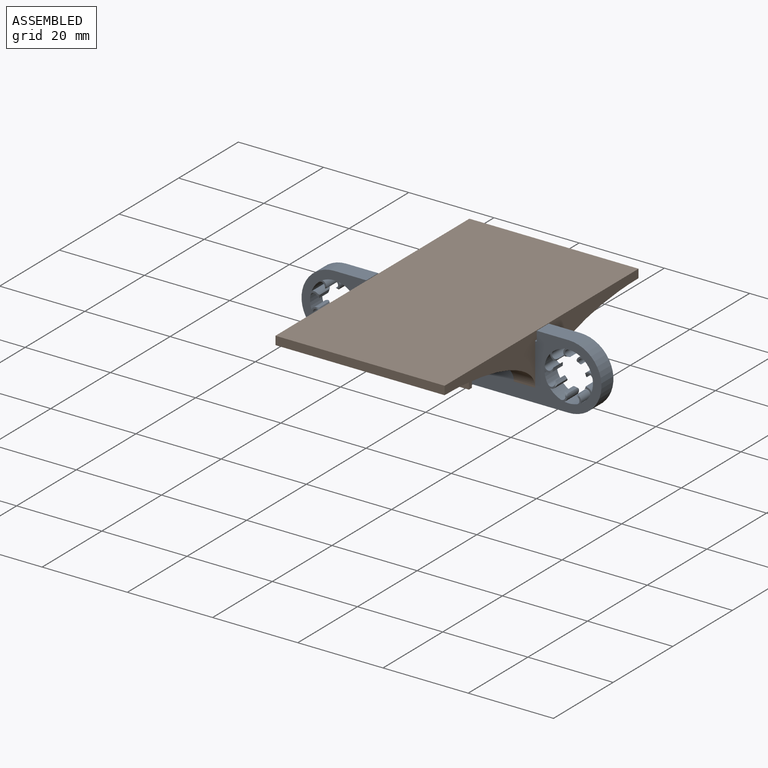
[diagram: assembled view]
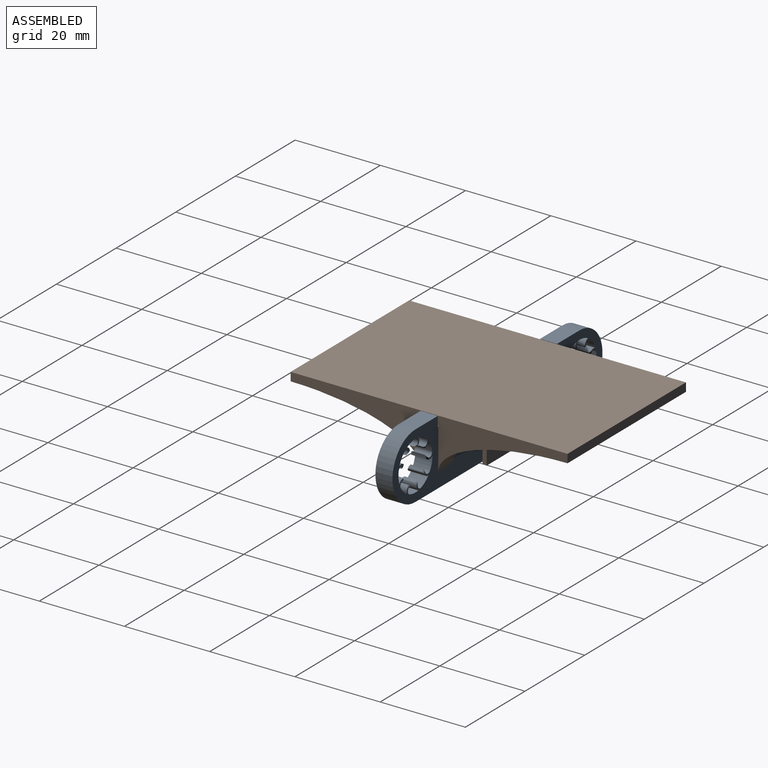
[diagram: assembled view, second angle]
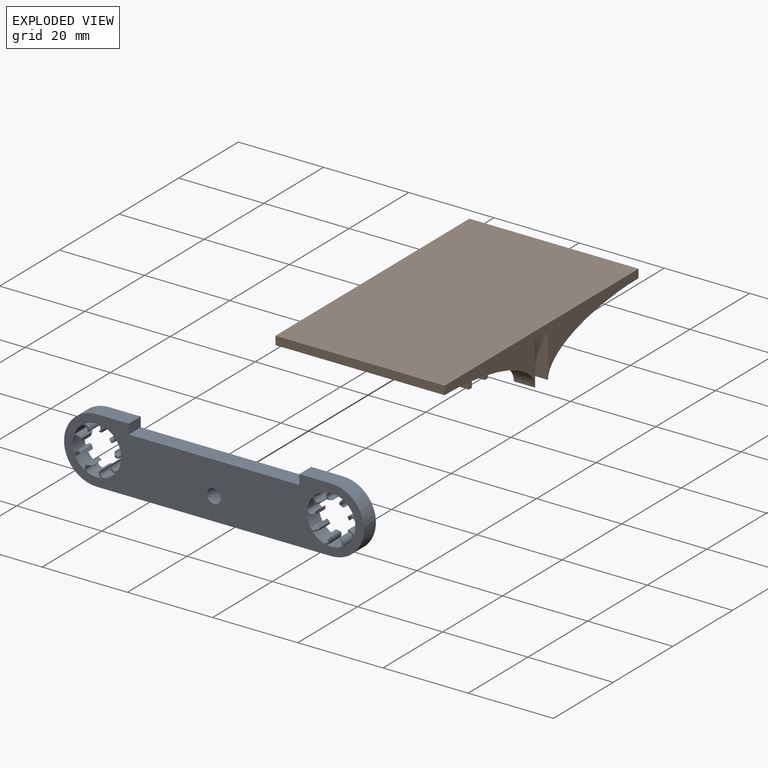
[diagram: exploded view]
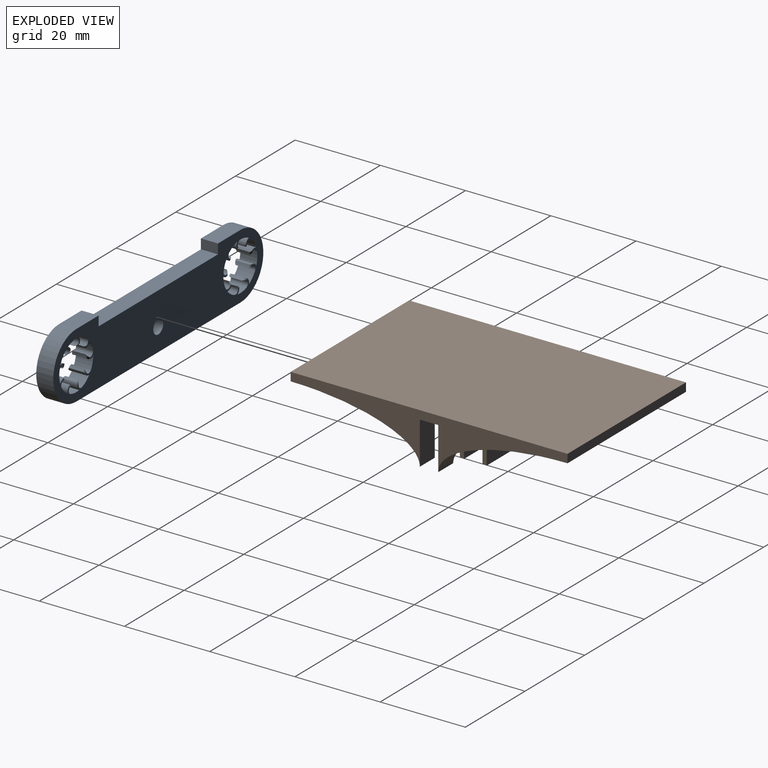
[diagram: exploded view, second angle]
ASSEMBLY  parts=2 mates=2
PART A: 119 faces, bbox 70.4x4x15.4 mm
  f0: plane 70.4x15.4mm, normal (0,1,0), area 739.2mm2, adj f20,f21,f22,f23,f24,f25,f26,f27
  f1: cylinder r=3.95mm len=3mm, axis (0,1,0), area 2.5mm2, adj f61,f62,f117,f118
  f2: cylinder r=3.95mm len=3mm, axis (0,1,0), area 2.5mm2, adj f63,f64,f115,f116
  f3: cylinder r=3.95mm len=3mm, axis (0,1,0), area 2.5mm2, adj f65,f66,f113,f114
  f4: cylinder r=3.95mm len=3mm, axis (0,1,0), area 2.5mm2, adj f67,f68,f111,f112
  f5: cylinder r=3.95mm len=3mm, axis (0,1,0), area 2.5mm2, adj f69,f70,f109,f110
  f6: cylinder r=3.95mm len=3mm, axis (0,1,0), area 2.5mm2, adj f71,f72,f107,f108
  f7: cylinder r=3.95mm len=3mm, axis (0,1,0), area 2.5mm2, adj f73,f74,f105,f106
  f8: cylinder r=3.95mm len=3mm, axis (0,1,0), area 2.5mm2, adj f75,f76,f103,f104
  f9: cylinder r=3.95mm len=3mm, axis (0,1,0), area 2.5mm2, adj f77,f78,f101,f102
  f10: plane 70.4x15.4mm, normal (0,-1,0), area 739.2mm2, adj f20,f21,f22,f23,f24,f25,f26,f27
  f11: cylinder r=3.95mm len=3mm, axis (0,1,0), area 2.5mm2, adj f43,f44,f99,f100
  f12: cylinder r=3.95mm len=3mm, axis (0,1,0), area 2.5mm2, adj f45,f46,f97,f98
  f13: cylinder r=3.95mm len=3mm, axis (0,1,0), area 2.5mm2, adj f47,f48,f95,f96
  f14: cylinder r=3.95mm len=3mm, axis (0,1,0), area 2.5mm2, adj f49,f50,f93,f94
  f15: cylinder r=3.95mm len=3mm, axis (0,1,0), area 2.5mm2, adj f51,f52,f91,f92
  f16: cylinder r=3.95mm len=3mm, axis (0,1,0), area 2.5mm2, adj f53,f54,f89,f90
  f17: cylinder r=3.95mm len=3mm, axis (0,1,0), area 2.5mm2, adj f55,f56,f87,f88
  f18: cylinder r=3.95mm len=3mm, axis (0,1,0), area 2.5mm2, adj f57,f58,f85,f86
  f19: cylinder r=3.95mm len=3mm, axis (0,1,0), area 2.5mm2, adj f59,f60,f83,f84
  f20: plane 7.5x4mm, normal (0,0,1), area 30mm2, adj f0,f10,f39,f79
  f21: cylinder r=5.7mm len=4mm, axis (0,1,0), area 11.9mm2, adj f0,f10,f61,f78
  f22: cylinder r=5.7mm len=4mm, axis (0,1,0), area 11.9mm2, adj f0,f10,f76,f77
  f23: cylinder r=5.7mm len=4mm, axis (0,1,0), area 11.9mm2, adj f0,f10,f74,f75
  f24: cylinder r=5.7mm len=4mm, axis (0,1,0), area 11.9mm2, adj f0,f10,f72,f73
  f25: cylinder r=5.7mm len=4mm, axis (0,1,0), area 11.9mm2, adj f0,f10,f70,f71
  f26: cylinder r=5.7mm len=4mm, axis (0,1,0), area 11.9mm2, adj f0,f10,f68,f69
  f27: cylinder r=5.7mm len=4mm, axis (0,1,0), area 11.9mm2, adj f0,f10,f66,f67
  f28: cylinder r=5.7mm len=4mm, axis (0,1,0), area 11.9mm2, adj f0,f10,f63,f65
  f29: cylinder r=5.7mm len=4mm, axis (0,1,0), area 11.9mm2, adj f0,f10,f57,f60
  f30: cylinder r=5.7mm len=4mm, axis (0,1,0), area 11.9mm2, adj f0,f10,f55,f58
  f31: cylinder r=5.7mm len=4mm, axis (0,1,0), area 11.9mm2, adj f0,f10,f53,f56
  f32: cylinder r=5.7mm len=4mm, axis (0,1,0), area 11.9mm2, adj f0,f10,f51,f54
  f33: cylinder r=5.7mm len=4mm, axis (0,1,0), area 11.9mm2, adj f0,f10,f49,f52
  f34: cylinder r=5.7mm len=4mm, axis (0,1,0), area 11.9mm2, adj f0,f10,f47,f50
  f35: cylinder r=5.7mm len=4mm, axis (0,1,0), area 11.9mm2, adj f0,f10,f46,f48
  f36: cylinder r=5.7mm len=4mm, axis (0,1,0), area 11.9mm2, adj f0,f10,f43,f45
  f37: cylinder r=5.7mm len=4mm, axis (0,1,0), area 11.9mm2, adj f0,f10,f44,f59
  f38: plane 7.5x4mm, normal (0,0,1), area 30mm2, adj f0,f10,f42,f80
  f39: cylinder r=7.7mm len=15.4mm, axis (0,1,0), area 96.8mm2, adj f0,f10,f20,f40
  f40: plane 55x4mm, normal (0,0,-1), area 220mm2, adj f0,f10,f39,f42
  f41: cylinder r=5.7mm len=4mm, axis (0,1,0), area 11.9mm2, adj f0,f10,f62,f64
  f42: cylinder r=7.7mm len=15.4mm, axis (0,1,0), area 96.8mm2, adj f0,f10,f38,f40
  f43: cylinder r=0.88mm len=4mm, axis (0,1,0), area 10.7mm2, adj f0,f10,f11,f36,f99,f100
  f44: cylinder r=1.28mm len=4mm, axis (0,1,0), area 7.6mm2, adj f0,f10,f11,f37,f99,f100
  f45: cylinder r=1.28mm len=4mm, axis (0,1,0), area 7.6mm2, adj f0,f10,f12,f36,f97,f98
  f46: cylinder r=0.88mm len=4mm, axis (0,1,0), area 10.7mm2, adj f0,f10,f12,f35,f97,f98
  f47: cylinder r=0.88mm len=4mm, axis (0,1,0), area 10.7mm2, adj f0,f10,f13,f34,f95,f96
  f48: cylinder r=1.28mm len=4mm, axis (0,1,0), area 7.6mm2, adj f0,f10,f13,f35,f95,f96
  f49: cylinder r=0.88mm len=4mm, axis (0,1,0), area 10.7mm2, adj f0,f10,f14,f33,f93,f94
  f50: cylinder r=1.28mm len=4mm, axis (0,1,0), area 7.6mm2, adj f0,f10,f14,f34,f93,f94
  f51: cylinder r=0.88mm len=4mm, axis (0,1,0), area 10.7mm2, adj f0,f10,f15,f32,f91,f92
  f52: cylinder r=1.28mm len=4mm, axis (0,1,0), area 7.6mm2, adj f0,f10,f15,f33,f91,f92
  f53: cylinder r=0.88mm len=4mm, axis (0,1,0), area 10.7mm2, adj f0,f10,f16,f31,f89,f90
  f54: cylinder r=1.28mm len=4mm, axis (0,1,0), area 7.6mm2, adj f0,f10,f16,f32,f89,f90
  f55: cylinder r=0.88mm len=4mm, axis (0,1,0), area 10.7mm2, adj f0,f10,f17,f30,f87,f88
  f56: cylinder r=1.28mm len=4mm, axis (0,1,0), area 7.6mm2, adj f0,f10,f17,f31,f87,f88
  f57: cylinder r=0.88mm len=4mm, axis (0,1,0), area 10.7mm2, adj f0,f10,f18,f29,f85,f86
  f58: cylinder r=1.28mm len=4mm, axis (0,1,0), area 7.6mm2, adj f0,f10,f18,f30,f85,f86
  f59: cylinder r=0.88mm len=4mm, axis (0,1,0), area 10.7mm2, adj f0,f10,f19,f37,f83,f84
  f60: cylinder r=1.28mm len=4mm, axis (0,1,0), area 7.6mm2, adj f0,f10,f19,f29,f83,f84
  f61: cylinder r=1.28mm len=4mm, axis (0,1,0), area 7.6mm2, adj f0,f1,f10,f21,f117,f118
  f62: cylinder r=0.88mm len=4mm, axis (0,1,0), area 10.7mm2, adj f0,f1,f10,f41,f117,f118
  f63: cylinder r=0.88mm len=4mm, axis (0,1,0), area 10.7mm2, adj f0,f2,f10,f28,f115,f116
  f64: cylinder r=1.28mm len=4mm, axis (0,1,0), area 7.6mm2, adj f0,f2,f10,f41,f115,f116
  f65: cylinder r=1.28mm len=4mm, axis (0,1,0), area 7.6mm2, adj f0,f3,f10,f28,f113,f114
  f66: cylinder r=0.88mm len=4mm, axis (0,1,0), area 10.7mm2, adj f0,f3,f10,f27,f113,f114
  f67: cylinder r=1.28mm len=4mm, axis (0,1,0), area 7.6mm2, adj f0,f4,f10,f27,f111,f112
  f68: cylinder r=0.88mm len=4mm, axis (0,1,0), area 10.7mm2, adj f0,f4,f10,f26,f111,f112
  f69: cylinder r=1.28mm len=4mm, axis (0,1,0), area 7.6mm2, adj f0,f5,f10,f26,f109,f110
  f70: cylinder r=0.88mm len=4mm, axis (0,1,0), area 10.7mm2, adj f0,f5,f10,f25,f109,f110
  f71: cylinder r=1.28mm len=4mm, axis (0,1,0), area 7.6mm2, adj f0,f6,f10,f25,f107,f108
  f72: cylinder r=0.88mm len=4mm, axis (0,1,0), area 10.7mm2, adj f0,f6,f10,f24,f107,f108
  f73: cylinder r=1.28mm len=4mm, axis (0,1,0), area 7.6mm2, adj f0,f7,f10,f24,f105,f106
  f74: cylinder r=0.88mm len=4mm, axis (0,1,0), area 10.7mm2, adj f0,f7,f10,f23,f105,f106
  f75: cylinder r=1.28mm len=4mm, axis (0,1,0), area 7.6mm2, adj f0,f8,f10,f23,f103,f104
  f76: cylinder r=0.88mm len=4mm, axis (0,1,0), area 10.7mm2, adj f0,f8,f10,f22,f103,f104
  f77: cylinder r=1.28mm len=4mm, axis (0,1,0), area 7.6mm2, adj f0,f9,f10,f22,f101,f102
  f78: cylinder r=0.88mm len=4mm, axis (0,1,0), area 10.7mm2, adj f0,f9,f10,f21,f101,f102
  f79: plane 4x2.3mm, normal (1,0,0), area 9.2mm2, adj f0,f10,f20,f81
  f80: plane 4x2.3mm, normal (-1,0,0), area 9.2mm2, adj f0,f10,f38,f81
  f81: plane 40x4mm, normal (0,0,1), area 160mm2, adj f0,f10,f79,f80
  f82: cylinder r=1.65mm len=4mm, axis (0,1,0), area 41.5mm2, adj f0,f10
  f83: torus R=4.45mm, axis (0,-1,0), area 0.4mm2, adj f10,f19,f59,f60
  f84: torus R=4.45mm, axis (0,-1,0), area 0.4mm2, adj f0,f19,f59,f60
  f85: torus R=4.45mm, axis (0,-1,0), area 0.4mm2, adj f10,f18,f57,f58
  f86: torus R=4.45mm, axis (0,-1,0), area 0.4mm2, adj f0,f18,f57,f58
  f87: torus R=4.45mm, axis (0,-1,0), area 0.4mm2, adj f10,f17,f55,f56
  f88: torus R=4.45mm, axis (0,-1,0), area 0.4mm2, adj f0,f17,f55,f56
  f89: torus R=4.45mm, axis (0,-1,0), area 0.4mm2, adj f10,f16,f53,f54
  f90: torus R=4.45mm, axis (0,-1,0), area 0.4mm2, adj f0,f16,f53,f54
  f91: torus R=4.45mm, axis (0,-1,0), area 0.4mm2, adj f10,f15,f51,f52
  f92: torus R=4.45mm, axis (0,-1,0), area 0.4mm2, adj f0,f15,f51,f52
  f93: torus R=4.45mm, axis (0,-1,0), area 0.4mm2, adj f10,f14,f49,f50
  f94: torus R=4.45mm, axis (0,-1,0), area 0.4mm2, adj f0,f14,f49,f50
  f95: torus R=4.45mm, axis (0,-1,0), area 0.4mm2, adj f10,f13,f47,f48
  f96: torus R=4.45mm, axis (0,-1,0), area 0.4mm2, adj f0,f13,f47,f48
  f97: torus R=4.45mm, axis (0,-1,0), area 0.4mm2, adj f10,f12,f45,f46
  f98: torus R=4.45mm, axis (0,-1,0), area 0.4mm2, adj f0,f12,f45,f46
  f99: torus R=4.45mm, axis (0,-1,0), area 0.4mm2, adj f10,f11,f43,f44
  f100: torus R=4.45mm, axis (0,-1,0), area 0.4mm2, adj f0,f11,f43,f44
  f101: torus R=4.45mm, axis (0,-1,0), area 0.4mm2, adj f9,f10,f77,f78
  f102: torus R=4.45mm, axis (0,-1,0), area 0.4mm2, adj f0,f9,f77,f78
  f103: torus R=4.45mm, axis (0,-1,0), area 0.4mm2, adj f8,f10,f75,f76
  f104: torus R=4.45mm, axis (0,-1,0), area 0.4mm2, adj f0,f8,f75,f76
  f105: torus R=4.45mm, axis (0,-1,0), area 0.4mm2, adj f7,f10,f73,f74
  f106: torus R=4.45mm, axis (0,-1,0), area 0.4mm2, adj f0,f7,f73,f74
  f107: torus R=4.45mm, axis (0,-1,0), area 0.4mm2, adj f6,f10,f71,f72
  f108: torus R=4.45mm, axis (0,-1,0), area 0.4mm2, adj f0,f6,f71,f72
  f109: torus R=4.45mm, axis (0,-1,0), area 0.4mm2, adj f5,f10,f69,f70
  f110: torus R=4.45mm, axis (0,-1,0), area 0.4mm2, adj f0,f5,f69,f70
  f111: torus R=4.45mm, axis (0,-1,0), area 0.4mm2, adj f4,f10,f67,f68
  f112: torus R=4.45mm, axis (0,-1,0), area 0.4mm2, adj f0,f4,f67,f68
  f113: torus R=4.45mm, axis (0,-1,0), area 0.4mm2, adj f3,f10,f65,f66
  f114: torus R=4.45mm, axis (0,-1,0), area 0.4mm2, adj f0,f3,f65,f66
  f115: torus R=4.45mm, axis (0,-1,0), area 0.4mm2, adj f2,f10,f63,f64
  f116: torus R=4.45mm, axis (0,-1,0), area 0.4mm2, adj f0,f2,f63,f64
  f117: torus R=4.45mm, axis (0,-1,0), area 0.4mm2, adj f1,f10,f61,f62
  f118: torus R=4.45mm, axis (0,-1,0), area 0.4mm2, adj f0,f1,f61,f62
PART B: 30 faces, bbox 39.7x65x16 mm
  f0: plane 65x39.7mm, normal (0,0,-1), area 1953.7mm2, adj f1,f2,f3,f4,f7,f8,f10,f11
  f1: plane 39.7x2mm, normal (0,-1,0), area 79.4mm2, adj f0,f2,f4,f5,f6,f9
  f2: plane 65x12mm, normal (1,0,0), area 260.2mm2, adj f0,f1,f3,f5,f6,f7,f17,f18
  f3: plane 39.7x2mm, normal (0,1,0), area 79.4mm2, adj f0,f2,f4,f5,f17,f20
  f4: plane 65x12mm, normal (-1,0,0), area 260.2mm2, adj f0,f1,f3,f5,f9,f10,f20,f21
  f5: plane 65x39.7mm, normal (0,0,1), area 2580.5mm2, adj f1,f2,f3,f4
  f6: extruded ~30.34x10mm, area 168.7mm2, adj f1,f2,f7,f8
  f7: plane 10x5mm, normal (0,1,0), area 50mm2, adj f0,f2,f6,f8
  f8: plane 30.34x10mm, normal (-1,0,0), area 65.1mm2, adj f0,f6,f7
  f9: extruded ~30.34x10mm, area 168.7mm2, adj f1,f4,f10,f11
  f10: plane 10x5mm, normal (0,1,0), area 50mm2, adj f0,f4,f9,f11
  f11: plane 30.34x10mm, normal (1,0,0), area 65.1mm2, adj f0,f9,f10
  f12: plane 14x10mm, normal (0,1,0), area 129.8mm2, adj f0,f14,f15,f16,f29
  f13: plane 14x10mm, normal (0,-1,0), area 129.8mm2, adj f0,f14,f15,f16,f29
  f14: plane 10x1mm, normal (0,0,-1), area 10mm2, adj f12,f13,f15,f16
  f15: plane 14x1mm, normal (1,0,0), area 14mm2, adj f0,f12,f13,f14
  f16: plane 14x1mm, normal (-1,0,0), area 14mm2, adj f0,f12,f13,f14
  f17: extruded ~30.34x10mm, area 168.7mm2, adj f2,f3,f18,f19
  f18: plane 10x5mm, normal (0,-1,0), area 50mm2, adj f0,f2,f17,f19
  f19: plane 30.34x10mm, normal (-1,0,0), area 65.1mm2, adj f0,f17,f18
  f20: extruded ~30.34x10mm, area 168.7mm2, adj f3,f4,f21,f22
  f21: plane 10x5mm, normal (0,-1,0), area 50mm2, adj f0,f4,f20,f22
  f22: plane 30.34x10mm, normal (1,0,0), area 65.1mm2, adj f0,f20,f21
  f23: plane 14x10mm, normal (0,-1,0), area 129.8mm2, adj f0,f24,f26,f27,f28
  f24: plane 10x1mm, normal (0,0,-1), area 10mm2, adj f23,f25,f26,f27
  f25: plane 14x10mm, normal (0,1,0), area 129.8mm2, adj f0,f24,f26,f27,f28
  f26: plane 14x1mm, normal (1,0,0), area 14mm2, adj f0,f23,f24,f25
  f27: plane 14x1mm, normal (-1,0,0), area 14mm2, adj f0,f23,f24,f25
  f28: cylinder r=1.8mm len=3.6mm, axis (0,-1,0), area 11.3mm2, adj f23,f25
  f29: cylinder r=1.8mm len=3.6mm, axis (0,-1,0), area 11.3mm2, adj f12,f13
PLACE A t=(-22.29,-4.08,3.88)mm
PLACE B t=(-22.29,-6.24,-3.11)mm
MATE cylindrical B.f28 <-> A.f82  axis (0,-1,0) through (-22.29,-8.9,-11.11)mm
MATE planar B.f18 <-> A.f0  axis (0,-1,0) through (-4.94,-4.08,-8.11)mm
